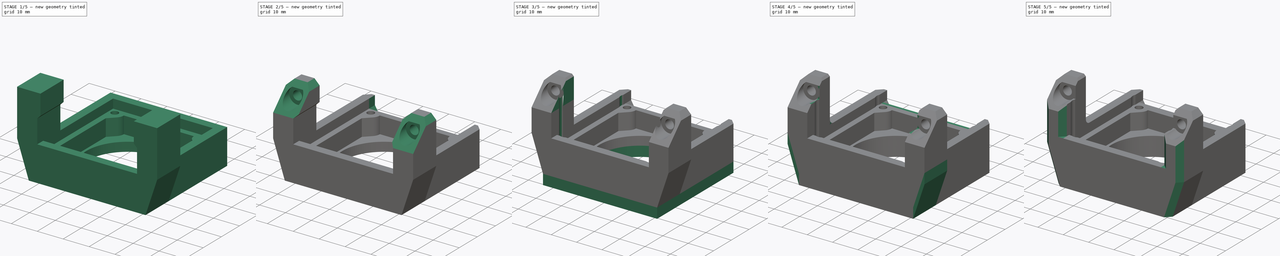
[diagram: build sequence overview — one tinted view per stage of 5, left to right]
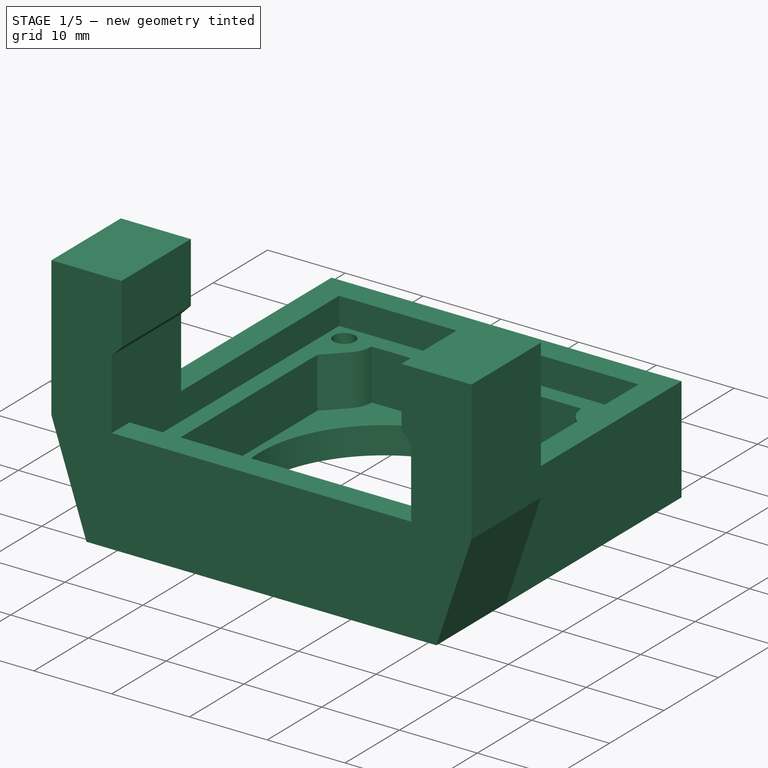
[diagram: stage 1 of 5 — iso view after this stage's code; geometry added in this stage tinted green]
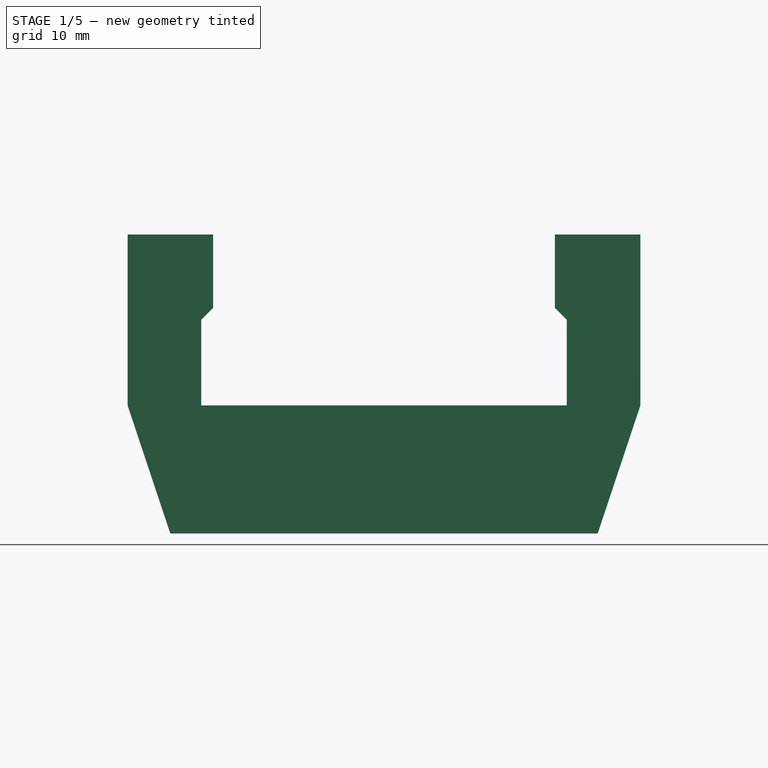
[diagram: stage 1 of 5 — front view after this stage's code; geometry added in this stage tinted green]
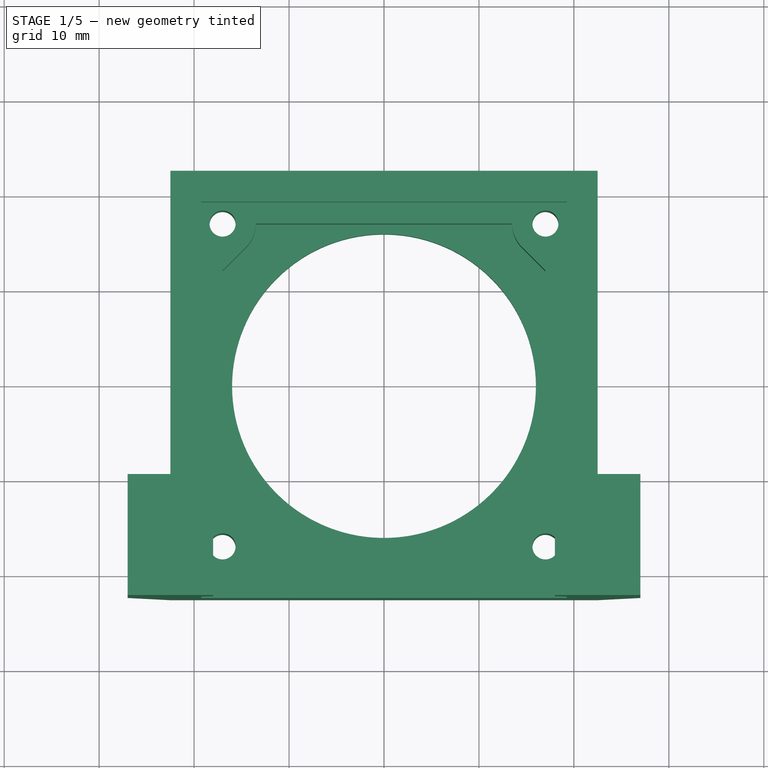
[diagram: stage 1 of 5 — top view after this stage's code; geometry added in this stage tinted green]
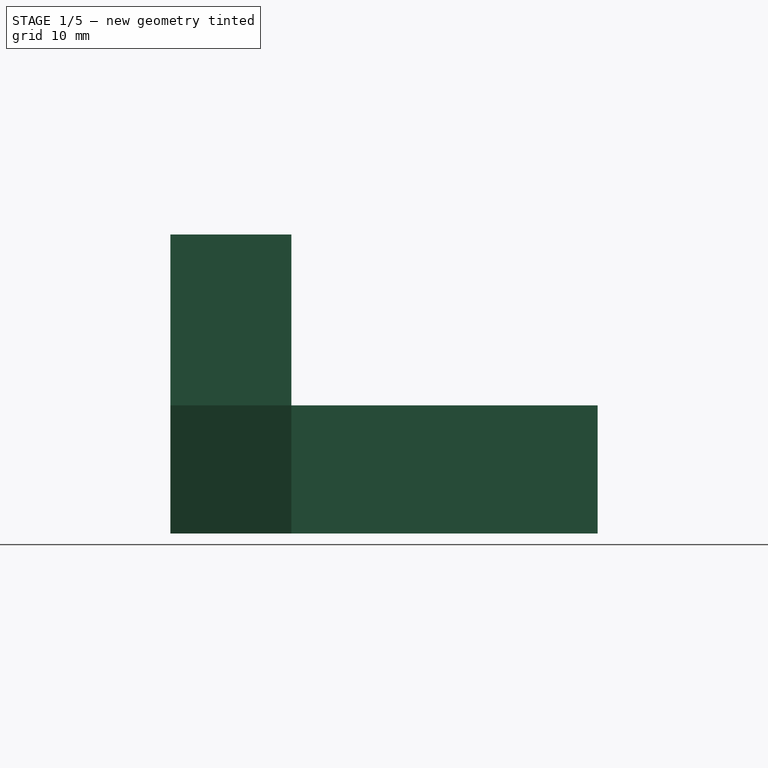
[diagram: stage 1 of 5 — right view after this stage's code; geometry added in this stage tinted green]
FCSTD DOCUMENT  (FreeCAD 0.20R29410 (Git))
Label: top-camera-mount
License: All rights reserved
LicenseURL: http://en.wikipedia.org/wiki/All_rights_reserved
objects: Sketcher::SketchObject×16, PartDesign::Pocket×10, PartDesign::Plane×7, PartDesign::Pad×5, PartDesign::Chamfer×4, PartDesign::Fillet×2, PartDesign::SubtractivePipe×1, PartDesign::Mirrored×1, PartDesign::Hole×1, PartDesign::Body×1
note: 71 computed .brp shape members not serialized (recipe doc carries the construction recipe); baked Part::Feature solids carry a one-line shape summary decoded from their .brp

FEATURE [Sketcher::SketchObject] Sketch  label="Base"
  FullyConstrained = true
  MapMode = 5
  Support = -> [XY_Plane]
  sketch-geometry (8):
    g0: LineSegment StartX=-22.5 StartY=22.5 StartZ=0 EndX=22.5 EndY=22.5 EndZ=0
    g1: LineSegment StartX=22.5 StartY=22.5 StartZ=0 EndX=22.5 EndY=-22.5 EndZ=0
    g2: LineSegment StartX=22.5 StartY=-22.5 StartZ=0 EndX=-22.5 EndY=-22.5 EndZ=0
    g3: LineSegment StartX=-22.5 StartY=-22.5 StartZ=0 EndX=-22.5 EndY=22.5 EndZ=0
    g4: LineSegment StartX=-19.25 StartY=19.25 StartZ=0 EndX=19.25 EndY=19.25 EndZ=0
    g5: LineSegment StartX=19.25 StartY=19.25 StartZ=0 EndX=19.25 EndY=-19.25 EndZ=0
    g6: LineSegment StartX=19.25 StartY=-19.25 StartZ=0 EndX=-19.25 EndY=-19.25 EndZ=0
    g7: LineSegment StartX=-19.25 StartY=-19.25 StartZ=0 EndX=-19.25 EndY=19.25 EndZ=0
  constraints (21):
    c: Coincident(g0,g1)
    c: Vertical(g1)
    c: Coincident(g1,g2)
    c: Horizontal(g2)
    c: Coincident(g2,g3)
    c: Coincident(g3,g0)
    c: Vertical(g3)
    c: Symmetric(g0,g0,g-2)
    c: DistanceX(g0,g0) = 45
    c: Coincident(g4,g5)
    c: Coincident(g5,g6)
    c: Coincident(g6,g7)
    c: Coincident(g7,g4)
    c: Horizontal(g6)
    c: Vertical(g7)
    c: DistanceX(g4,g4) = 38.5
    c: DistanceY(g5,g5) = 38.5
    c: Symmetric(g4,g5,g-1)
    c: Symmetric(g4,g4,g-2)
    c: DistanceY(g-1,g0) = 22.5
    c: DistanceY(g1,g-1) = 22.5
FEATURE [PartDesign::Pad] Pad
  AllowMultiFace = false
  Direction = (1,1,1)
  Length = 13.5
  Length2 = 100
  Profile = -> Sketch
  Reversed = true
  Type = 0
FEATURE [Sketcher::SketchObject] Sketch001  label="SquareCutout"
  FullyConstrained = true
  MapMode = 5
  Support = -> [XY_Plane]
  sketch-geometry (20):
    g0: LineSegment StartX=-19.25 StartY=19.25 StartZ=0 EndX=19.25 EndY=19.25 EndZ=0
    g1: LineSegment StartX=19.25 StartY=19.25 StartZ=0 EndX=19.25 EndY=-19.25 EndZ=0
    g2: LineSegment StartX=-19.25 StartY=-19.25 StartZ=0 EndX=-19.25 EndY=19.25 EndZ=0
    g3: LineSegment StartX=-19.25 StartY=-19.25 StartZ=0 EndX=19.25 EndY=19.25 EndZ=0
    g4: LineSegment StartX=-19.25 StartY=19.25 StartZ=0 EndX=19.25 EndY=-19.25 EndZ=0
    g5: LineSegment StartX=-19.25 StartY=-19.25 StartZ=0 EndX=19.25 EndY=-19.25 EndZ=0
    g6: LineSegment StartX=-17 StartY=17 StartZ=0 EndX=17 EndY=17 EndZ=0
    g7: LineSegment StartX=17 StartY=17 StartZ=0 EndX=17 EndY=-17 EndZ=0
    g8: LineSegment StartX=17 StartY=-17 StartZ=0 EndX=-17 EndY=-17 EndZ=0
    g9: LineSegment StartX=-17 StartY=-17 StartZ=0 EndX=-17 EndY=17 EndZ=0
    g10: ArcOfCircle CenterX=-17 CenterY=-17 CenterZ=0 NormalX=0 NormalY=0 NormalZ=1 AngleXU=0 Radius=3.5 StartAngle=3e-16 EndAngle=1.5708
    g11: ArcOfCircle CenterX=17 CenterY=-17 CenterZ=0 NormalX=0 NormalY=0 NormalZ=1 AngleXU=0 Radius=3.5 StartAngle=1.5708 EndAngle=3.14159
    g12: ArcOfCircle CenterX=17 CenterY=17 CenterZ=0 NormalX=0 NormalY=0 NormalZ=1 AngleXU=0 Radius=3.5 StartAngle=3.14159 EndAngle=3.92699
    g13: LineSegment StartX=14.5251 StartY=14.5251 StartZ=0 EndX=17 EndY=12.0503 EndZ=0
    g14: LineSegment StartX=17 StartY=12.0503 StartZ=0 EndX=17 EndY=-13.5 EndZ=0
    g15: LineSegment StartX=13.5 StartY=17 StartZ=0 EndX=-13.5 EndY=17 EndZ=0
    g16: ArcOfCircle CenterX=-17 CenterY=17 CenterZ=0 NormalX=0 NormalY=0 NormalZ=1 AngleXU=0 Radius=3.5 StartAngle=5.49779 EndAngle=6.28319
    g17: LineSegment StartX=-14.5251 StartY=14.5251 StartZ=0 EndX=-17 EndY=12.0503 EndZ=0
    g18: LineSegment StartX=-17 StartY=12.0503 StartZ=0 EndX=-17 EndY=-13.5 EndZ=0
    g19: LineSegment StartX=-13.5 StartY=-17 StartZ=0 EndX=13.5 EndY=-17 EndZ=0
  constraints (54):
    c: Coincident(g0,g1)
    c: Coincident(g2,g0)
    c: Vertical(g1)
    c: DistanceX(g0,g0) = 38.5
    c: DistanceY(g1,g1) = 38.5
    c: Symmetric(g0,g2,g-1)
    c: Symmetric(g0,g0,g-2)
    c: Coincident(g3,g0)
    c: Coincident(g4,g0)
    c: Coincident(g4,g1)
    c: Coincident(g6,g7)
    c: Coincident(g7,g8)
    c: Coincident(g8,g9)
    c: Coincident(g9,g6)
    c: Horizontal(g6)
    c: Horizontal(g8)
    c: Vertical(g7)
    c: Vertical(g9)
    c: PointOnObject(g6,g4)
    c: PointOnObject(g7,g4)
    c: DistanceX(g6,g6) = 34
    c: Coincident(g5,g2)
    c: Coincident(g5,g1)
    c: PointOnObject(g8,g3)
    c: Coincident(g3,g2)
    c: Horizontal(g5)
    c: Coincident(g10,g8)
    c: PointOnObject(g10,g9)
    c: PointOnObject(g10,g8)
    c: Coincident(g11,g7)
    c: PointOnObject(g11,g8)
    c: PointOnObject(g11,g7)
    c: Coincident(g12,g6)
    c: PointOnObject(g12,g6)
    c: PointOnObject(g12,g3)
    c: Tangent(g12,g13) = -1.5708
    c: Coincident(g13,g14)
    c: Coincident(g14,g11)
    c: Vertical(g14)
    c: Coincident(g12,g15)
    c: Coincident(g16,g6)
    c: PointOnObject(g16,g4)
    c: Coincident(g16,g15)
    c: Tangent(g16,g17) = 1.5708
    c: Coincident(g17,g18)
    c: Coincident(g18,g10)
    c: Vertical(g18)
    c: Diameter(g10) = 7
    c: Diameter(g11) = 7
    c: Diameter(g16) = 7
    c: Diameter(g12) = 7
    c: Horizontal(g15)
    c: Coincident(g19,g10)
    c: Coincident(g19,g11)
FEATURE [PartDesign::Pocket] Pocket  label="SquareCutOut"
  AllowMultiFace = false
  BaseFeature = -> Pad
  Direction = (1,1,1)
  Length = 10
  Length2 = 100
  Profile = -> Sketch001
  Type = 0
FEATURE [Sketcher::SketchObject] Sketch002
  FullyConstrained = true
  MapMode = 5
  Support = -> [XY_Plane]
  sketch-geometry (13):
    g0: Circle CenterX=0 CenterY=0 CenterZ=0 NormalX=0 NormalY=0 NormalZ=1 AngleXU=0 Radius=16
    g1: LineSegment StartX=-14 StartY=14 StartZ=0 EndX=14 EndY=14 EndZ=0
    g2: LineSegment StartX=14 StartY=14 StartZ=0 EndX=14 EndY=-14 EndZ=0
    g3: LineSegment StartX=14 StartY=-14 StartZ=0 EndX=-14 EndY=-14 EndZ=0
    g4: LineSegment StartX=-14 StartY=-14 StartZ=0 EndX=-14 EndY=14 EndZ=0
    g5: LineSegment StartX=-17 StartY=17 StartZ=0 EndX=17 EndY=17 EndZ=0
    g6: LineSegment StartX=17 StartY=17 StartZ=0 EndX=17 EndY=-17 EndZ=0
    g7: LineSegment StartX=17 StartY=-17 StartZ=0 EndX=-17 EndY=-17 EndZ=0
    g8: LineSegment StartX=-17 StartY=-17 StartZ=0 EndX=-17 EndY=17 EndZ=0
    g9: Circle CenterX=-17 CenterY=17 CenterZ=0 NormalX=0 NormalY=0 NormalZ=1 AngleXU=0 Radius=1.375
    g10: Circle CenterX=17 CenterY=17 CenterZ=0 NormalX=0 NormalY=0 NormalZ=1 AngleXU=0 Radius=1.375
    g11: Circle CenterX=17 CenterY=-17 CenterZ=0 NormalX=0 NormalY=0 NormalZ=1 AngleXU=0 Radius=1.375
    g12: Circle CenterX=-17 CenterY=-17 CenterZ=0 NormalX=0 NormalY=0 NormalZ=1 AngleXU=0 Radius=1.375
  constraints (30):
    c: Coincident(g0,g-1)
    c: Diameter(g0) = 32
    c: Coincident(g1,g2)
    c: Coincident(g2,g3)
    c: Coincident(g3,g4)
    c: Coincident(g4,g1)
    c: Horizontal(g3)
    c: Vertical(g2)
    c: Symmetric(g1,g1,g-2)
    c: Symmetric(g1,g3,g-1)
    c: DistanceX(g1,g1) = 28
    c: DistanceY(g2,g2) = 28
    c: Coincident(g5,g6)
    c: Coincident(g6,g7)
    c: Coincident(g7,g8)
    c: Coincident(g8,g5)
    c: Horizontal(g7)
    c: Vertical(g6)
    c: DistanceX(g5,g5) = 34
    c: Equal(g5,g8)
    c: Symmetric(g5,g5,g-2)
    c: Symmetric(g5,g7,g-1)
    c: Coincident(g9,g5)
    c: Coincident(g10,g5)
    c: Coincident(g11,g6)
    c: Coincident(g12,g7)
    c: Diameter(g9) = 2.75
    c: Diameter(g10) = 2.75
    c: Diameter(g11) = 2.75
    c: Diameter(g12) = 2.75
FEATURE [PartDesign::Pocket] Pocket001  label="ScrewHoles"
  AllowMultiFace = false
  BaseFeature = -> Pocket
  Direction = (1,1,1)
  Length = 5
  Length2 = 100
  Profile = -> Sketch002
  Type = 1
FEATURE [PartDesign::Plane] DatumPlane
  AttachmentOffset = pos=(0,0,-7.75) rot=(0,0,1;0rad)
  Length = 64.3923
  MapMode = 5
  Placement = pos=(0,-14.75,-1.7e-15) rot=(1,0,0;1.5708rad)
  ResizeMode = 0
  Support = -> [Pocket001]
  Width = 60.3923
FEATURE [Sketcher::SketchObject] Sketch003  label="VerticalArms"
  FullyConstrained = true
  MapMode = 5
  Placement = pos=(0,-14.75,-1.7e-15) rot=(1,0,0;1.5708rad)
  Support = -> [DatumPlane]
  sketch-geometry (14):
    g0: LineSegment StartX=-22.5 StartY=-13.5 StartZ=0 EndX=-27 EndY=0 EndZ=0
    g1: LineSegment StartX=-27 StartY=0 StartZ=0 EndX=-27 EndY=18 EndZ=0
    g2: LineSegment StartX=-27 StartY=18 StartZ=0 EndX=-18 EndY=18 EndZ=0
    g3: LineSegment StartX=18 StartY=18 StartZ=0 EndX=27 EndY=18 EndZ=0
    g4: LineSegment StartX=27 StartY=18 StartZ=0 EndX=27 EndY=0 EndZ=0
    g5: LineSegment StartX=27 StartY=0 StartZ=0 EndX=22.5 EndY=-13.5 EndZ=0
    g6: LineSegment StartX=-22.5 StartY=-13.5 StartZ=0 EndX=-19.25 EndY=0 EndZ=0
    g7: LineSegment StartX=19.25 StartY=0 StartZ=0 EndX=22.5 EndY=-13.5 EndZ=0
    g8: LineSegment StartX=-18 StartY=18 StartZ=0 EndX=-18 EndY=10.25 EndZ=0
    g9: LineSegment StartX=-18 StartY=10.25 StartZ=0 EndX=-19.25 EndY=9 EndZ=0
    g10: LineSegment StartX=-19.25 StartY=9 StartZ=0 EndX=-19.25 EndY=0 EndZ=0
    g11: LineSegment StartX=18 StartY=18 StartZ=0 EndX=18 EndY=10.25 EndZ=0
    g12: LineSegment StartX=18 StartY=10.25 StartZ=0 EndX=19.25 EndY=9 EndZ=0
    g13: LineSegment StartX=19.25 StartY=9 StartZ=0 EndX=19.25 EndY=0 EndZ=0
  constraints (39):
    c: PointOnObject(g0,g-1)
    c: Coincident(g0,g1)
    c: Coincident(g1,g2)
    c: PointOnObject(g6,g-1)
    c: Horizontal(g3)
    c: Coincident(g3,g4)
    c: PointOnObject(g4,g-1)
    c: Vertical(g4)
    c: Coincident(g4,g5)
    c: Vertical(g1)
    c: Horizontal(g2)
    c: Symmetric(g6,g7,g-2)
    c: DistanceX(g6,g7) = 38.5
    c: DistanceX(g0,g5) = 45
    c: Symmetric(g0,g5,g-2)
    c: DistanceY(g0,g-1) = 13.5
    c: Symmetric(g1,g3,g-2)
    c: DistanceY(g-1,g2) = 18
    c: Coincident(g6,g0)
    c: Coincident(g7,g5)
    c: Vertical(g8)
    c: Coincident(g8,g9)
    c: Angle(g8,g9) = 2.35619
    c: Coincident(g10,g9)
    c: Coincident(g10,g6)
    c: Vertical(g10)
    c: DistanceX(g0,g-1) = 27
    c: Coincident(g8,g2)
    c: DistanceX(g2,g2) = 9
    c: DistanceY(g9,g2) = 9
    c: DistanceX(g3,g3) = 9
    c: Coincident(g3,g11)
    c: Vertical(g11)
    c: Coincident(g11,g12)
    c: Coincident(g12,g13)
    c: Coincident(g13,g7)
    c: Vertical(g13)
    c: DistanceY(g12,g3) = 9
    c: Angle(g12,g11) = 2.35619
FEATURE [PartDesign::Plane] DatumPlane003  label="PrintPlane"
  Length = 64.3923
  MapMode = 5
  Placement = pos=(0,0,-13.5) rot=(1,0,0;3.14159rad)
  ResizeMode = 0
  Width = 60.3923
FEATURE [Sketcher::SketchObject] Sketch007  label="CutOutForCameraPCB"
  FullyConstrained = true
  MapMode = 5
  Support = -> [XY_Plane]
  sketch-geometry (4):
    g0: LineSegment StartX=-19.25 StartY=19.25 StartZ=0 EndX=19.25 EndY=19.25 EndZ=0
    g1: LineSegment StartX=19.25 StartY=19.25 StartZ=0 EndX=19.25 EndY=-19.25 EndZ=0
    g2: LineSegment StartX=19.25 StartY=-19.25 StartZ=0 EndX=-19.25 EndY=-19.25 EndZ=0
    g3: LineSegment StartX=-19.25 StartY=-19.25 StartZ=0 EndX=-19.25 EndY=19.25 EndZ=0
  constraints (11):
    c: Coincident(g0,g1)
    c: Coincident(g1,g2)
    c: Coincident(g2,g3)
    c: Coincident(g3,g0)
    c: Horizontal(g0)
    c: Horizontal(g2)
    c: Vertical(g1)
    c: Vertical(g3)
    c: Symmetric(g0,g1,g-1)
    c: Equal(g1,g0)
    c: DistanceX(g0,g0) = 38.5
FEATURE [PartDesign::Pocket] Pocket005  label="PCB"
  BaseFeature = -> Pocket001
  Direction = (1,1,1)
  Length = 3.5
  Length2 = 100
  Profile = -> Sketch007
  Type = 0
FEATURE [PartDesign::Pad] Pad001
  AllowMultiFace = false
  BaseFeature = -> Pocket005
  Direction = (1,1,1)
  Length = 7.75
  Length2 = 5
  Profile = -> Sketch003
  Reversed = true
  Type = 4
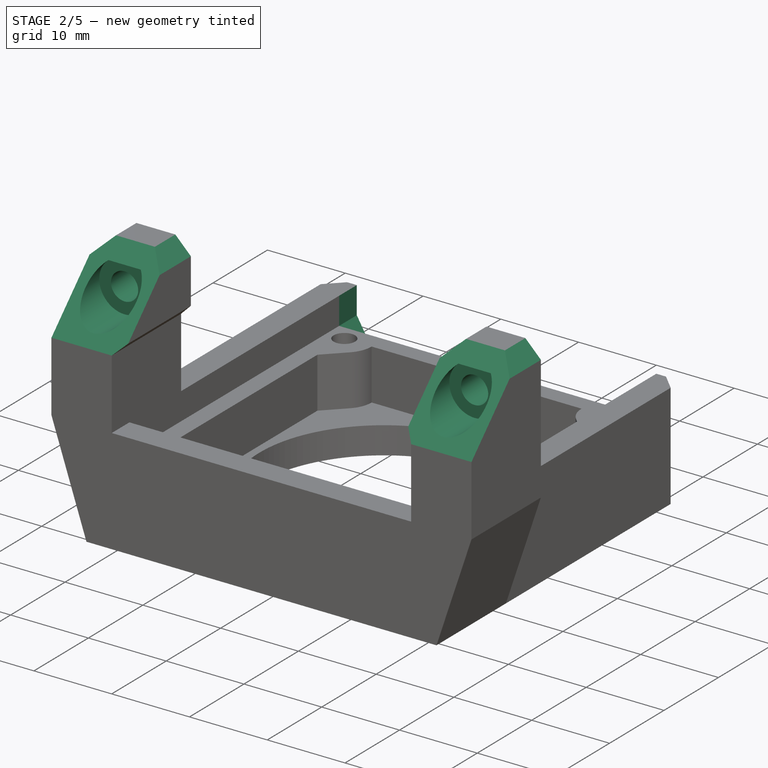
[diagram: stage 2 of 5 — iso view after this stage's code; geometry added in this stage tinted green]
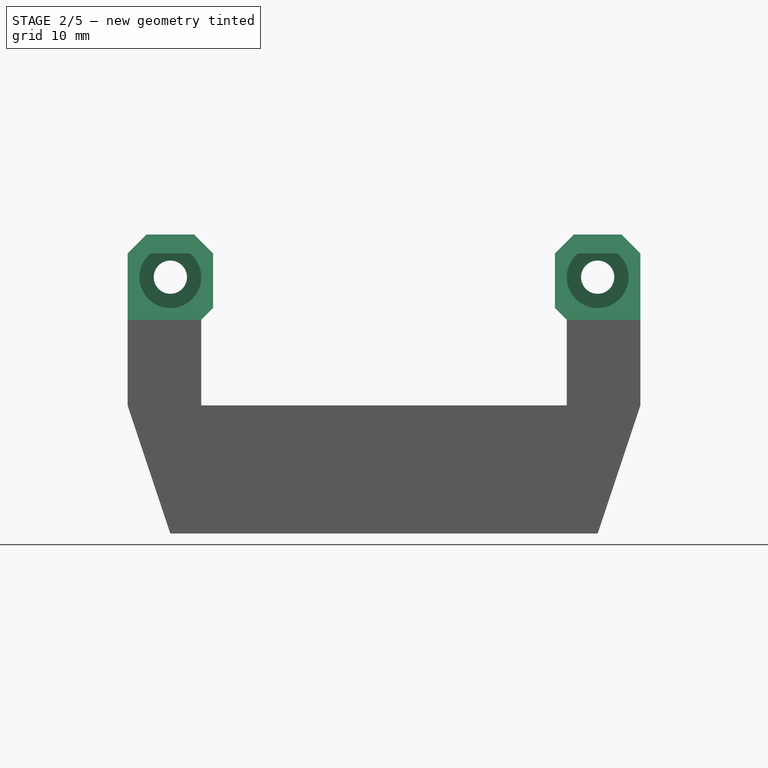
[diagram: stage 2 of 5 — front view after this stage's code; geometry added in this stage tinted green]
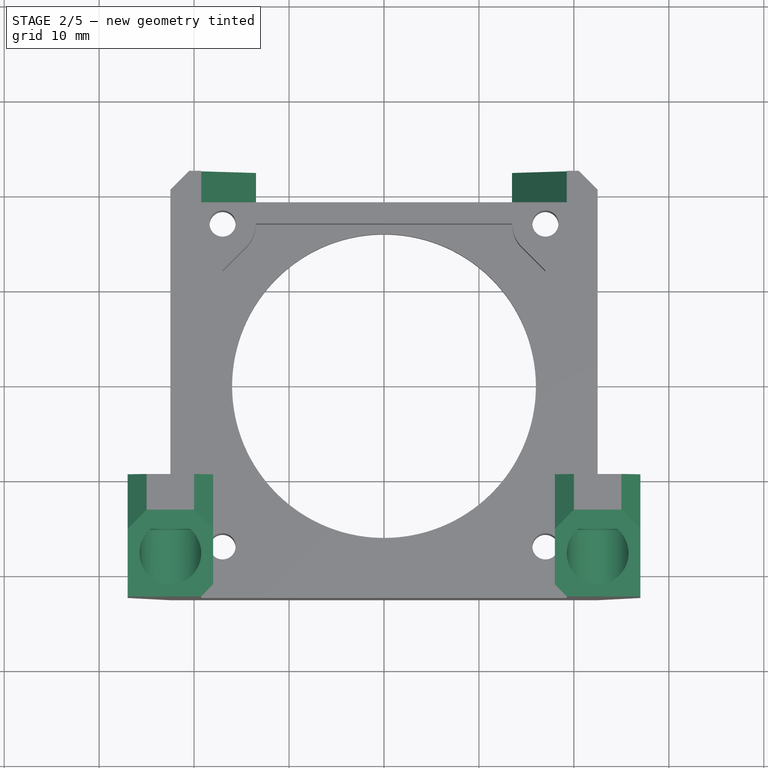
[diagram: stage 2 of 5 — top view after this stage's code; geometry added in this stage tinted green]
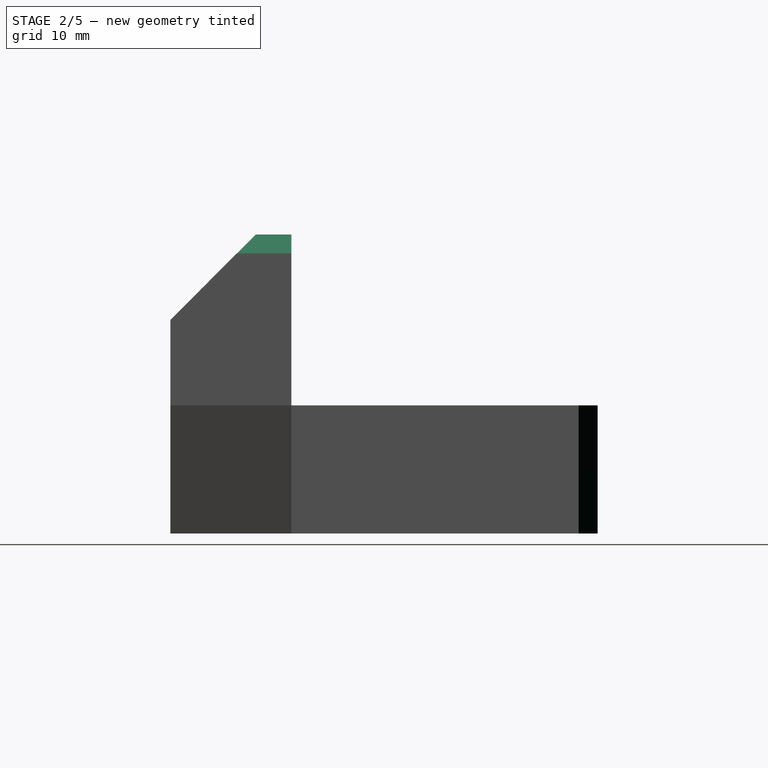
[diagram: stage 2 of 5 — right view after this stage's code; geometry added in this stage tinted green]
FEATURE [PartDesign::Plane] DatumPlane001
  Length = 64.3923
  MapMode = 5
  Placement = pos=(0,22.5,0) rot=(0,0.707107,0.707107;3.14159rad)
  ResizeMode = 0
  Support = -> [Pad001]
  Width = 60.3923
FEATURE [Sketcher::SketchObject] Sketch005
  FullyConstrained = true
  MapMode = 5
  Placement = pos=(0,22.5,0) rot=(0,0.707107,0.707107;3.14159rad)
  Support = -> [DatumPlane001]
  sketch-geometry (8):
    g0: LineSegment StartX=-9.625 StartY=-20.171 StartZ=0 EndX=9.625 EndY=-20.171 EndZ=0
    g1: LineSegment StartX=9.625 StartY=-20.171 StartZ=0 EndX=19.25 EndY=-3.5 EndZ=0
    g2: LineSegment StartX=-19.25 StartY=-3.5 StartZ=0 EndX=-9.625 EndY=-20.171 EndZ=0
    g3: Circle CenterX=0 CenterY=-3.5 CenterZ=0 NormalX=0 NormalY=0 NormalZ=1 AngleXU=0 Radius=19.25
    g4: LineSegment StartX=-19.25 StartY=-3.5 StartZ=0 EndX=-19.25 EndY=10 EndZ=0
    g5: LineSegment StartX=19.25 StartY=-3.5 StartZ=0 EndX=19.25 EndY=10 EndZ=0
    g6: LineSegment StartX=-19.25 StartY=10 StartZ=0 EndX=19.25 EndY=10 EndZ=0
    g7: LineSegment StartX=-19.25 StartY=-3.5 StartZ=0 EndX=19.25 EndY=-3.5 EndZ=0
  constraints (23):
    c: Coincident(g0,g1)
    c: Coincident(g2,g0)
    c: Equal(g0,g1)
    c: Equal(g0,g2)
    c: PointOnObject(g0,g3)
    c: PointOnObject(g1,g3)
    c: PointOnObject(g2,g3)
    c: PointOnObject(g2,g3)
    c: Diameter(g3) = 38.5
    c: DistanceY(g3,g-1) = 3.5
    c: PointOnObject(g3,g-2)
    c: Vertical(g4)
    c: Coincident(g5,g1)
    c: Vertical(g5)
    c: Coincident(g6,g4)
    c: Coincident(g6,g5)
    c: Horizontal(g6)
    c: DistanceY(g-1,g5) = 10
    c: Coincident(g2,g4)
    c: Coincident(g7,g2)
    c: Coincident(g7,g1)
    c: PointOnObject(g3,g7)
    c: Horizontal(g7)
FEATURE [PartDesign::Pocket] Pocket003
  AllowMultiFace = false
  BaseFeature = -> Pad001
  Direction = (1,1,1)
  Length = 3.25
  Length2 = 100
  Profile = -> Sketch005
  Type = 0
FEATURE [PartDesign::Plane] DatumPlane004  label="PartNumberPlane"
  Length = 64.3923
  MapMode = 5
  Placement = pos=(0,-22.5,0) rot=(1,0,0;1.5708rad)
  ResizeMode = 0
  Support = -> [Pocket003]
  Width = 60.3923
FEATURE [PartDesign::Chamfer] Chamfer
  Angle = 45
  Base = -> Pocket003 [Edge72,Edge104]
  BaseFeature = -> Pocket003
  ChamferType = 0
  FlipDirection = false
  Size = 9
  Size2 = 1
  SupportTransform = false
  UseAllEdges = false
FEATURE [Sketcher::SketchObject] Sketch008  label="M3Holes"
  FullyConstrained = true
  MapMode = 5
  Placement = pos=(0,-22.5,0) rot=(1,0,0;1.5708rad)
  Support = -> [DatumPlane004]
  sketch-geometry (3):
    g0: Circle CenterX=-22.5 CenterY=13.5 CenterZ=0 NormalX=0 NormalY=0 NormalZ=1 AngleXU=0 Radius=1.75
    g1: Circle CenterX=22.5 CenterY=13.5 CenterZ=0 NormalX=0 NormalY=0 NormalZ=1 AngleXU=0 Radius=1.75
    g2: LineSegment StartX=-22.5 StartY=13.5 StartZ=0 EndX=22.5 EndY=13.5 EndZ=0
  constraints (7):
    c: DistanceX(g0,g1) = 45
    c: DistanceY(g-1,g0) = 13.5
    c: Diameter(g0) = 3.5
    c: Diameter(g1) = 3.5
    c: Coincident(g2,g0)
    c: Coincident(g2,g1)
    c: Symmetric(g0,g1,g-2)
FEATURE [PartDesign::Pocket] Pocket008
  BaseFeature = -> Chamfer
  Direction = (1,1,1)
  Length = 13
  Length2 = 100
  Profile = -> Sketch008
  Type = 0
FEATURE [Sketcher::SketchObject] Sketch009
  FullyConstrained = true
  MapMode = 5
  Placement = pos=(0,-22.5,0) rot=(1,0,0;1.5708rad)
  Support = -> [DatumPlane004]
  sketch-geometry (3):
    g0: Circle CenterX=-22.5 CenterY=13.5 CenterZ=0 NormalX=0 NormalY=0 NormalZ=1 AngleXU=0 Radius=3.25
    g1: Circle CenterX=22.5 CenterY=13.5 CenterZ=0 NormalX=0 NormalY=0 NormalZ=1 AngleXU=0 Radius=3.25
    g2: LineSegment StartX=-22.5 StartY=13.5 StartZ=0 EndX=22.5 EndY=13.5 EndZ=0
  constraints (7):
    c: Coincident(g2,g0)
    c: Coincident(g2,g1)
    c: DistanceX(g2,g2) = 45
    c: DistanceY(g-1,g0) = 13.5
    c: Symmetric(g0,g1,g-2)
    c: Diameter(g0) = 6.5
    c: Diameter(g1) = 6.5
FEATURE [PartDesign::Pocket] Pocket009
  BaseFeature = -> Pocket008
  Direction = (1,1,1)
  Length = 7
  Length2 = 100
  Profile = -> Sketch009
  Type = 0
FEATURE [PartDesign::Chamfer] Chamfer001
  Angle = 45
  Base = -> Pocket009 [Edge5,Edge24,Edge140,Edge143,Edge94,Edge35]
  BaseFeature = -> Pocket009
  ChamferType = 0
  FlipDirection = false
  Size = 2
  Size2 = 1
  SupportTransform = false
  UseAllEdges = false
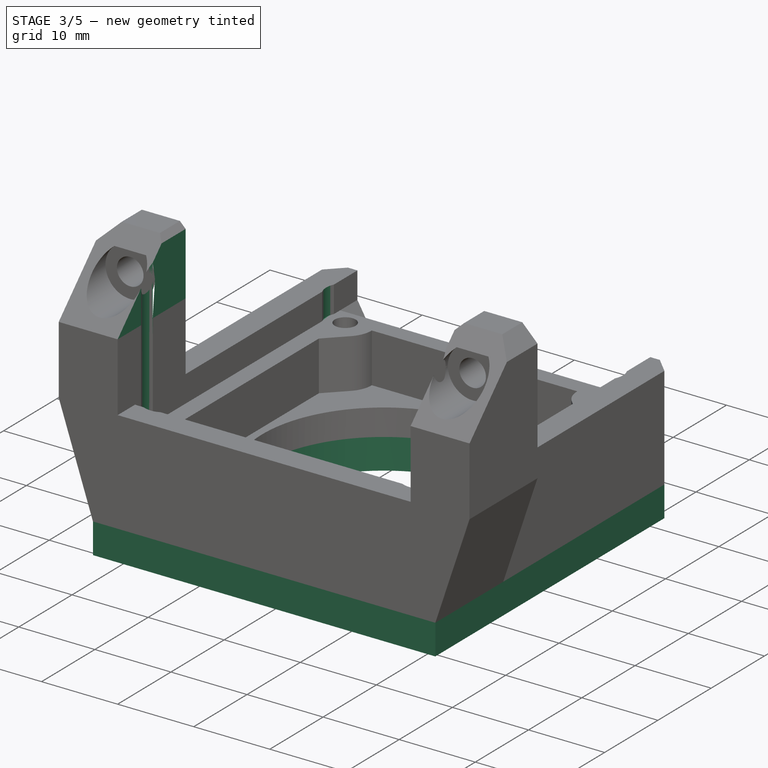
[diagram: stage 3 of 5 — iso view after this stage's code; geometry added in this stage tinted green]
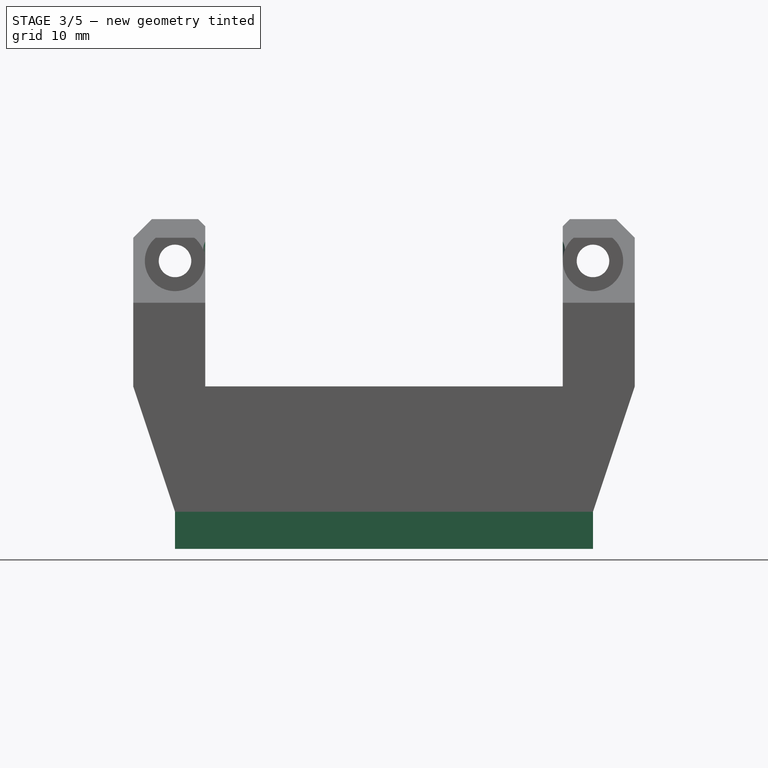
[diagram: stage 3 of 5 — front view after this stage's code; geometry added in this stage tinted green]
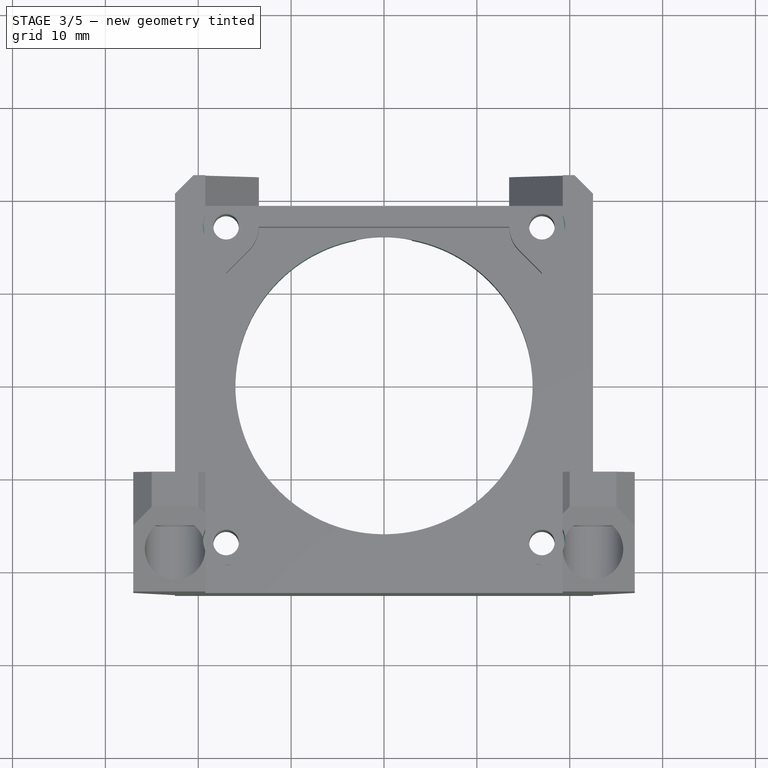
[diagram: stage 3 of 5 — top view after this stage's code; geometry added in this stage tinted green]
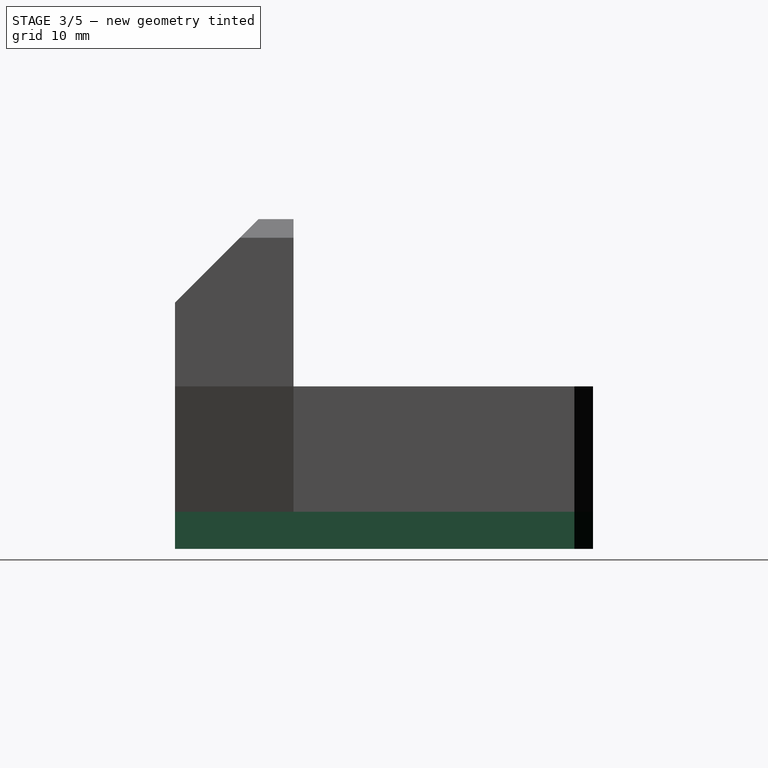
[diagram: stage 3 of 5 — right view after this stage's code; geometry added in this stage tinted green]
FEATURE [Sketcher::SketchObject] Sketch010
  FullyConstrained = true
  MapMode = 5
  Support = -> [XY_Plane]
  sketch-geometry (8):
    g0: LineSegment StartX=-17 StartY=17 StartZ=0 EndX=17 EndY=17 EndZ=0
    g1: LineSegment StartX=17 StartY=17 StartZ=0 EndX=17 EndY=-17 EndZ=0
    g2: LineSegment StartX=17 StartY=-17 StartZ=0 EndX=-17 EndY=-17 EndZ=0
    g3: LineSegment StartX=-17 StartY=-17 StartZ=0 EndX=-17 EndY=17 EndZ=0
    g4: Circle CenterX=-17 CenterY=17 CenterZ=0 NormalX=0 NormalY=0 NormalZ=1 AngleXU=0 Radius=2.5
    g5: Circle CenterX=17 CenterY=17 CenterZ=0 NormalX=0 NormalY=0 NormalZ=1 AngleXU=0 Radius=2.5
    g6: Circle CenterX=17 CenterY=-17 CenterZ=0 NormalX=0 NormalY=0 NormalZ=1 AngleXU=0 Radius=2.5
    g7: Circle CenterX=-17 CenterY=-17 CenterZ=0 NormalX=0 NormalY=0 NormalZ=1 AngleXU=0 Radius=2.5
  constraints (18):
    c: Coincident(g0,g1)
    c: Coincident(g1,g2)
    c: Coincident(g2,g3)
    c: Coincident(g3,g0)
    c: Horizontal(g2)
    c: Vertical(g1)
    c: Symmetric(g0,g0,g-2)
    c: Symmetric(g0,g2,g-1)
    c: DistanceY(g1,g1) = 34
    c: DistanceX(g0,g0) = 34
    c: Coincident(g4,g0)
    c: Coincident(g5,g0)
    c: Coincident(g6,g1)
    c: Diameter(g5) = 5
    c: Diameter(g4) = 5
    c: Diameter(g6) = 5
    c: Coincident(g7,g2)
    c: Diameter(g7) = 5
FEATURE [PartDesign::Pocket] Pocket010
  BaseFeature = -> Chamfer001
  Direction = (0,0,-1)
  Length = 3.5
  Length2 = 23
  Profile = -> Sketch010
  Type = 4
FEATURE [Sketcher::SketchObject] Sketch011
  FullyConstrained = true
  MapMode = 5
  Support = -> [XY_Plane]
  sketch-geometry (6):
    g0: LineSegment StartX=-17 StartY=0 StartZ=0 EndX=17 EndY=0 EndZ=0
    g1: LineSegment StartX=17 StartY=0 StartZ=0 EndX=17 EndY=-17 EndZ=0
    g2: LineSegment StartX=17 StartY=-17 StartZ=0 EndX=-17 EndY=-17 EndZ=0
    g3: LineSegment StartX=-17 StartY=-17 StartZ=0 EndX=-17 EndY=0 EndZ=0
    g4: Circle CenterX=-17 CenterY=-17 CenterZ=0 NormalX=0 NormalY=0 NormalZ=1 AngleXU=0 Radius=2.5
    g5: Circle CenterX=17 CenterY=-17 CenterZ=0 NormalX=0 NormalY=0 NormalZ=1 AngleXU=0 Radius=2.5
  constraints (15):
    c: Coincident(g0,g1)
    c: Coincident(g1,g2)
    c: Coincident(g2,g3)
    c: Coincident(g3,g0)
    c: Horizontal(g2)
    c: Vertical(g1)
    c: Vertical(g3)
    c: PointOnObject(g0,g-1)
    c: Symmetric(g0,g0,g-2)
    c: DistanceX(g2,g2) = 34
    c: DistanceY(g1,g1) = 17
    c: Coincident(g4,g2)
    c: Coincident(g5,g1)
    c: Equal(g4,g5)
    c: Diameter(g4) = 5
FEATURE [PartDesign::Plane] DatumPlane005
  Length = 64.3923
  MapMode = 5
  Placement = pos=(0,19.25,-4.6e-15) rot=(0,0.707107,0.707107;3.14159rad)
  ResizeMode = 0
  Support = -> [Chamfer001]
  Width = 60.3923
FEATURE [Sketcher::SketchObject] Sketch012  label="focus bolt access pocket sketch"
  FullyConstrained = true
  MapMode = 5
  Placement = pos=(0,19.25,-4.6e-15) rot=(0,0.707107,0.707107;3.14159rad)
  Support = -> [DatumPlane005]
  sketch-geometry (4):
    g0: ArcOfCircle CenterX=0 CenterY=-14.5 CenterZ=0 NormalX=0 NormalY=0 NormalZ=1 AngleXU=0 Radius=3 StartAngle=-1.874e-13 EndAngle=3.14159
    g1: ArcOfCircle CenterX=1e-16 CenterY=-17.5 CenterZ=0 NormalX=0 NormalY=0 NormalZ=1 AngleXU=0 Radius=3 StartAngle=3.14159 EndAngle=6.28319
    g2: LineSegment StartX=-3 StartY=-14.5 StartZ=0 EndX=-3 EndY=-17.5 EndZ=0
    g3: LineSegment StartX=3 StartY=-14.5 StartZ=0 EndX=3 EndY=-17.5 EndZ=0
  constraints (10):
    c: Tangent(g0,g3) = 1.5708
    c: Tangent(g0,g2) = -1.5708
    c: Tangent(g2,g1) = -1.5708
    c: Tangent(g3,g1) = 1.5708
    c: Vertical(g2)
    c: Equal(g0,g1)
    c: PointOnObject(g0,g-2)
    c: Diameter(g0) = 6
    c: DistanceY(g1,g0) = 3
    c: DistanceY(g0,g-1) = 14.5
FEATURE [PartDesign::Pad] Pad002
  BaseFeature = -> Pocket010
  Direction = (0,0,-1)
  Length = 4
  Length2 = 10
  Profile = -> Pocket010 [Face25]
  Type = 0
FEATURE [PartDesign::Pocket] Pocket012
  BaseFeature = -> Pad002
  Direction = (0,-1,2e-16)
  Length = 5
  Length2 = 5
  Profile = -> Sketch012
  ReferenceAxis = -> Sketch012 [N_Axis]
  Type = 0
FEATURE [Sketcher::SketchObject] Sketch013
  FullyConstrained = false
  MapMode = 5
  Placement = pos=(-19.25,0,0) rot=(0.57735,0.57735,0.57735;2.0944rad)
  Support = -> [Pocket012]
  sketch-geometry (4):
    g0: LineSegment StartX=-2.04172 StartY=6.57031 StartZ=0 EndX=-27.8765 EndY=6.57031 EndZ=0
    g1: LineSegment StartX=-27.8765 StartY=6.57031 StartZ=0 EndX=-27.8765 EndY=24.0815 EndZ=0
    g2: LineSegment StartX=-27.8765 StartY=24.0815 StartZ=0 EndX=-2.04172 EndY=24.0815 EndZ=0
    g3: LineSegment StartX=-2.04172 StartY=24.0815 StartZ=0 EndX=-2.04172 EndY=6.57031 EndZ=0
  constraints (8):
    c: Coincident(g0,g1)
    c: Coincident(g1,g2)
    c: Coincident(g2,g3)
    c: Coincident(g3,g0)
    c: Horizontal(g0)
    c: Horizontal(g2)
    c: Vertical(g1)
    c: Vertical(g3)
FEATURE [PartDesign::Pocket] Pocket013
  BaseFeature = -> Pocket012
  Direction = (-1,0,0)
  Length = 0
  Length2 = 5
  Profile = -> Sketch013
  ReferenceAxis = -> Sketch013 [N_Axis]
  Reversed = true
  Type = 3
  UpToFace = -> Pocket012 [Face90]
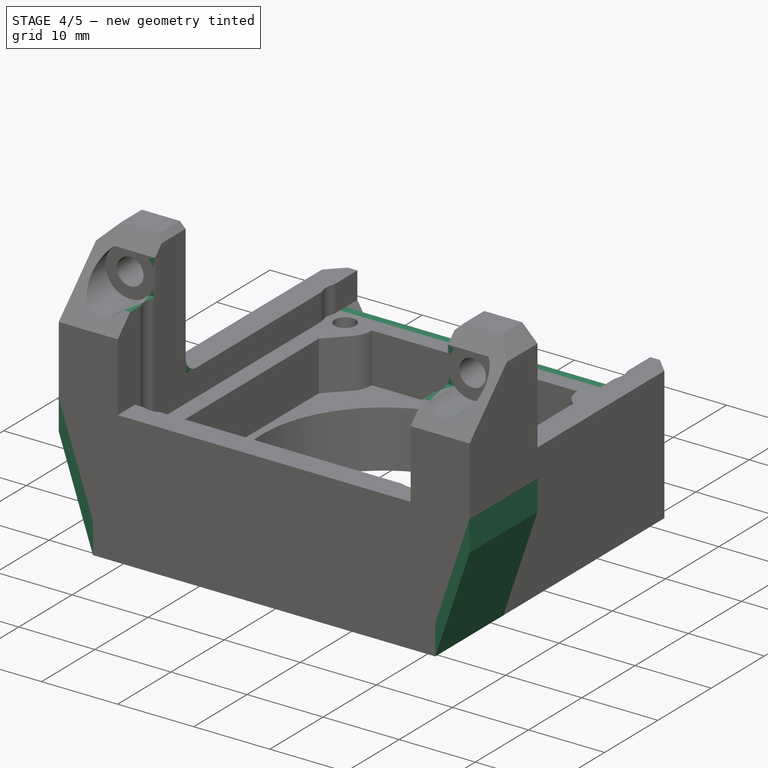
[diagram: stage 4 of 5 — iso view after this stage's code; geometry added in this stage tinted green]
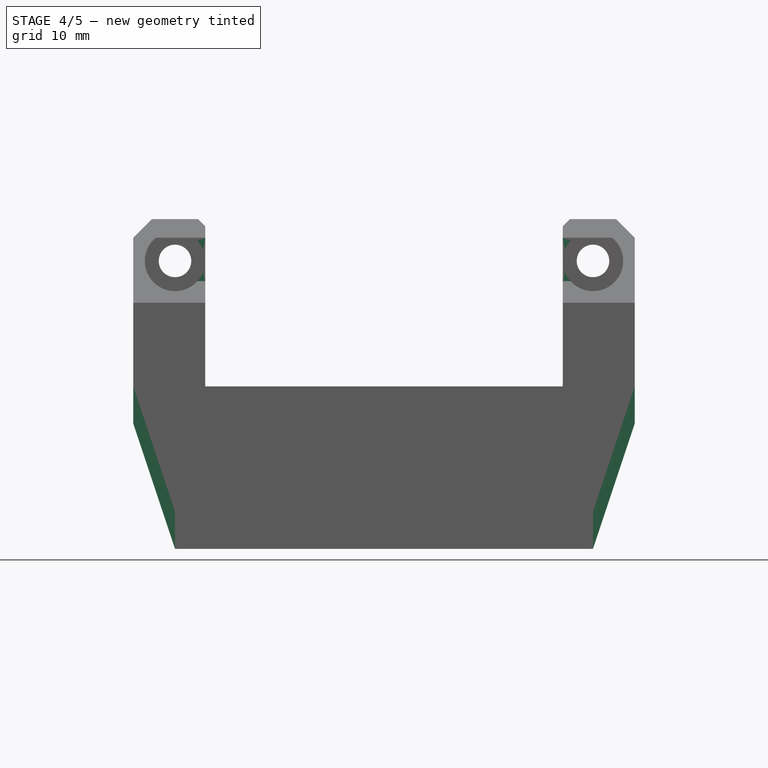
[diagram: stage 4 of 5 — front view after this stage's code; geometry added in this stage tinted green]
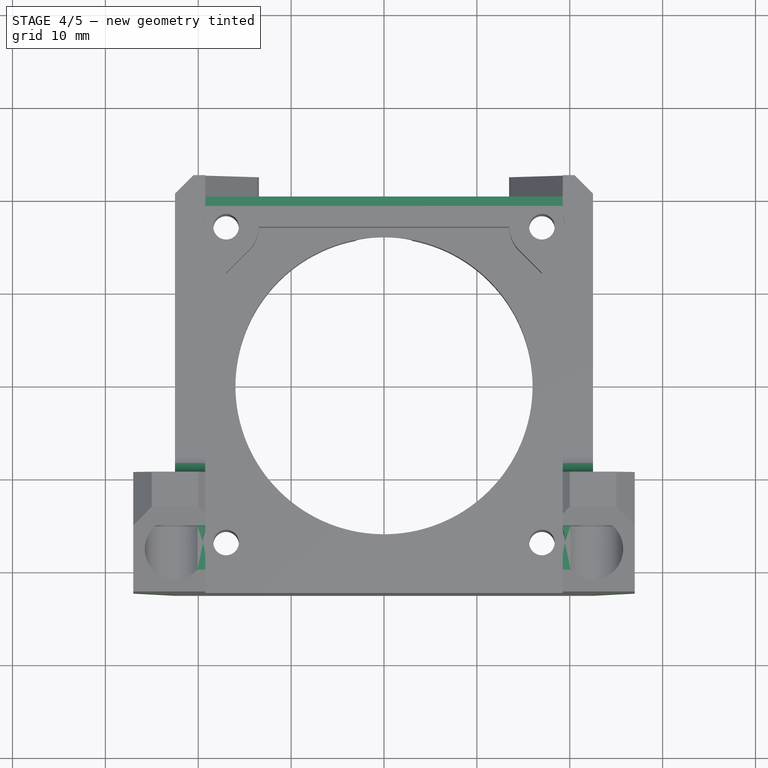
[diagram: stage 4 of 5 — top view after this stage's code; geometry added in this stage tinted green]
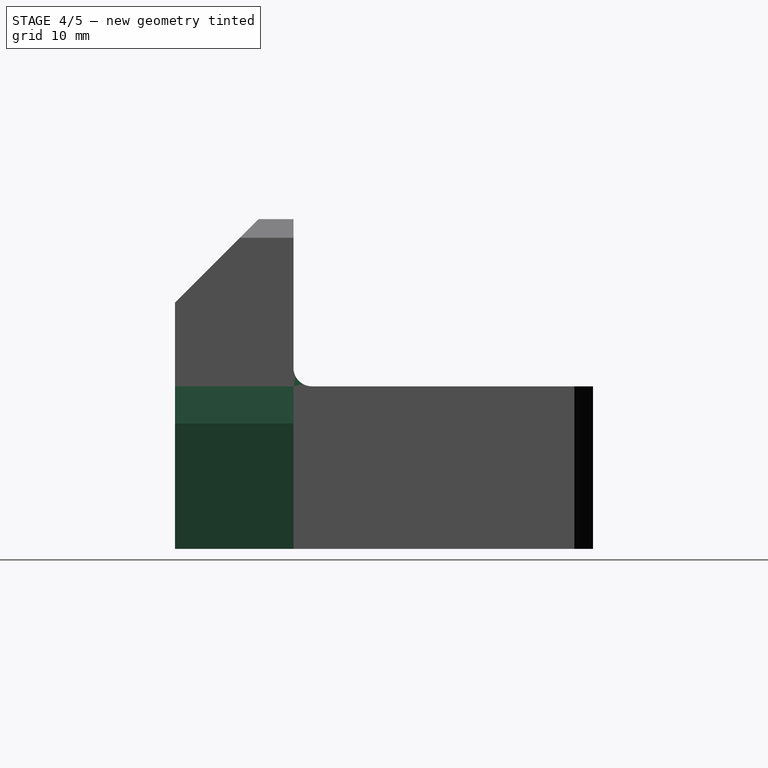
[diagram: stage 4 of 5 — right view after this stage's code; geometry added in this stage tinted green]
FEATURE [Sketcher::SketchObject] Sketch014
  FullyConstrained = false
  MapMode = 5
  Placement = pos=(0,-15.5,0) rot=(1,0,0;1.5708rad)
  Support = -> [Pocket013]
  sketch-geometry (4):
    g0: LineSegment StartX=-21.5041 StartY=16.778 StartZ=0 EndX=21.8587 EndY=16.778 EndZ=0
    g1: LineSegment StartX=21.8587 StartY=16.778 StartZ=0 EndX=21.8587 EndY=11.3306 EndZ=0
    g2: LineSegment StartX=21.8587 StartY=11.3306 StartZ=0 EndX=-21.5041 EndY=11.3306 EndZ=0
    g3: LineSegment StartX=-21.5041 StartY=11.3306 StartZ=0 EndX=-21.5041 EndY=16.778 EndZ=0
  constraints (8):
    c: Coincident(g0,g1)
    c: Coincident(g1,g2)
    c: Coincident(g2,g3)
    c: Coincident(g3,g0)
    c: Horizontal(g0)
    c: Horizontal(g2)
    c: Vertical(g1)
    c: Vertical(g3)
FEATURE [PartDesign::Pocket] Pocket014
  BaseFeature = -> Pocket013
  Direction = (0,1,-2e-16)
  Length = 5
  Length2 = 5
  Profile = -> Sketch014
  ReferenceAxis = -> Sketch014 [N_Axis]
  Reversed = true
  Type = 0
FEATURE [PartDesign::Fillet] Fillet
  Base = -> Pocket014 [Edge71,Edge47,Edge70,Edge28,Edge49,Edge69,Edge72,Edge73,Edge274,Edge275,Edge286,Edge287,Edge235,Edge281,Edge271,Edge203]
  BaseFeature = -> Pocket014
  Radius = 2
  SupportTransform = false
  UseAllEdges = false
FEATURE [PartDesign::Fillet] Fillet001
  Base = -> Fillet [Edge322,Edge200,Edge106,Edge86,Edge291,Edge18,Edge240,Edge170]
  BaseFeature = -> Fillet
  Radius = 2
  SupportTransform = false
  UseAllEdges = false
FEATURE [PartDesign::Pad] Pad003
  BaseFeature = -> Fillet001
  Direction = (0,1,-2e-16)
  Length = 1
  Length2 = 10
  Profile = -> Fillet001 [Face50,Face80,Face85]
  Type = 0
FEATURE [PartDesign::Plane] DatumPlane006
  Length = 64.3923
  MapMode = 5
  Placement = pos=(0,-22.5,0) rot=(1,0,0;1.5708rad)
  ResizeMode = 0
  Support = -> [Pad003]
  Width = 60.3923
FEATURE [Sketcher::SketchObject] Sketch015
  ExternalGeometry = -> [Pad003]
  FullyConstrained = true
  MapMode = 5
  Placement = pos=(0,-22.5,0) rot=(1,0,0;1.5708rad)
  Support = -> [DatumPlane006]
  sketch-geometry (8):
    g0: LineSegment StartX=-22.5 StartY=-17.5 StartZ=0 EndX=-27 EndY=-4 EndZ=0
    g1: LineSegment StartX=22.5 StartY=-17.5 StartZ=0 EndX=27 EndY=-4 EndZ=0
    g2: LineSegment StartX=27 StartY=-4 StartZ=0 EndX=27 EndY=0 EndZ=0
    g3: LineSegment StartX=27 StartY=0 StartZ=0 EndX=22.5 EndY=-13.5 EndZ=0
    g4: LineSegment StartX=22.5 StartY=-17.5 StartZ=0 EndX=22.5 EndY=-13.5 EndZ=0
    g5: LineSegment StartX=-22.5 StartY=-13.5 StartZ=0 EndX=-22.5 EndY=-17.5 EndZ=0
    g6: LineSegment StartX=-27 StartY=-4 StartZ=0 EndX=-27 EndY=1.8e-15 EndZ=0
    g7: LineSegment StartX=-27 StartY=1.8e-15 StartZ=0 EndX=-22.5 EndY=-13.5 EndZ=0
  constraints (18):
    c: Coincident(g0,g-3)
    c: Coincident(g1,g-3)
    c: Parallel(g-4,g0)
    c: Vertical(g-4,g0)
    c: Vertical(g1,g-5)
    c: Equal(g1,g0)
    c: Coincident(g2,g1)
    c: Coincident(g2,g-5)
    c: Coincident(g3,g2)
    c: Coincident(g-5,g3)
    c: Coincident(g4,g1)
    c: Coincident(g4,g3)
    c: Coincident(g5,g-4)
    c: Coincident(g5,g0)
    c: Coincident(g6,g0)
    c: Coincident(g6,g-4)
    c: Coincident(g7,g6)
    c: Coincident(g7,g5)
FEATURE [PartDesign::Pad] Pad004
  BaseFeature = -> Pad003
  Direction = (0,-1,2e-16)
  Length = 12.75
  Length2 = 10
  Profile = -> Sketch015
  ReferenceAxis = -> Sketch015 [N_Axis]
  Reversed = true
  Type = 0
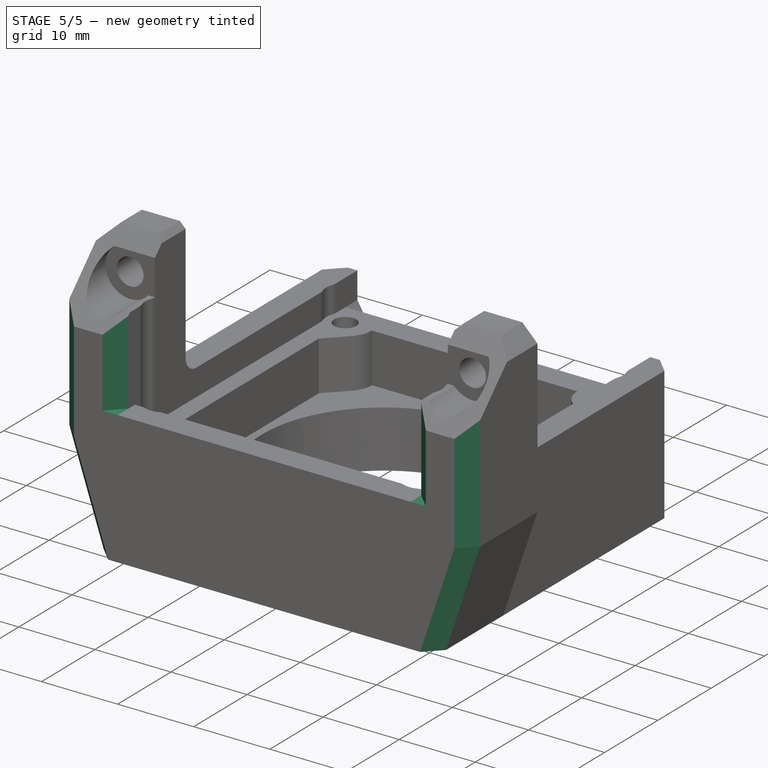
[diagram: stage 5 of 5 — iso view after this stage's code; geometry added in this stage tinted green]
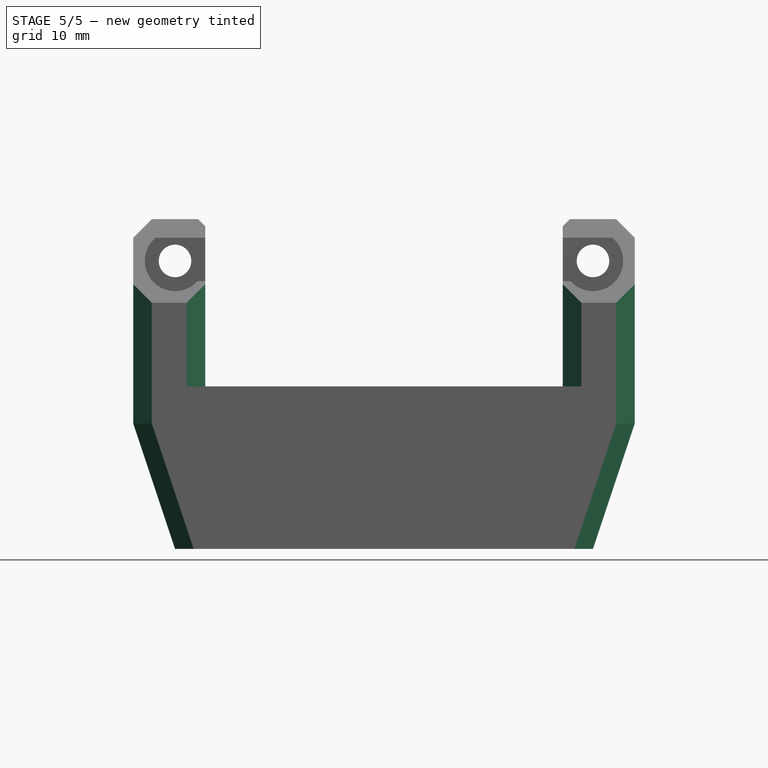
[diagram: stage 5 of 5 — front view after this stage's code; geometry added in this stage tinted green]
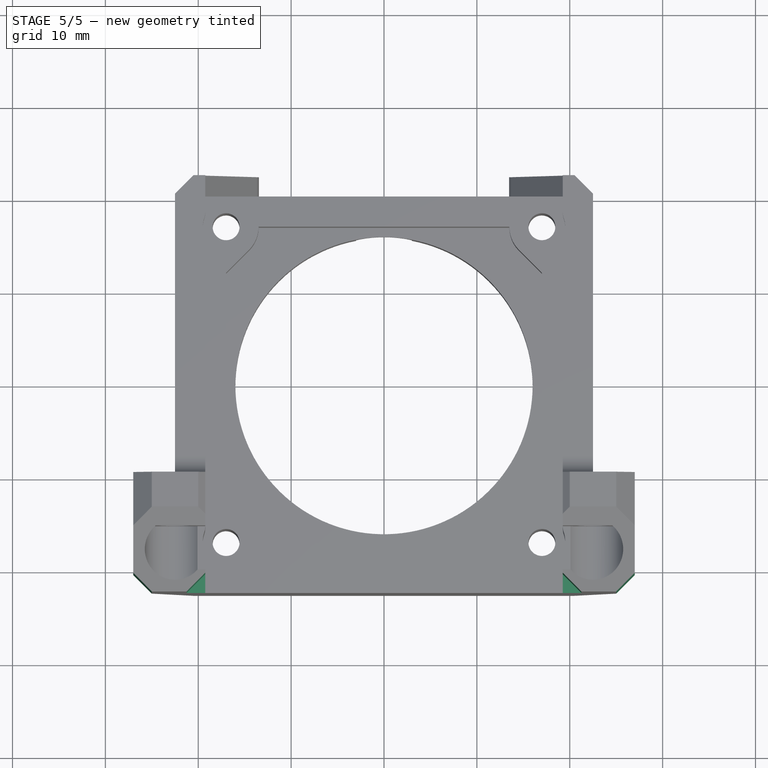
[diagram: stage 5 of 5 — top view after this stage's code; geometry added in this stage tinted green]
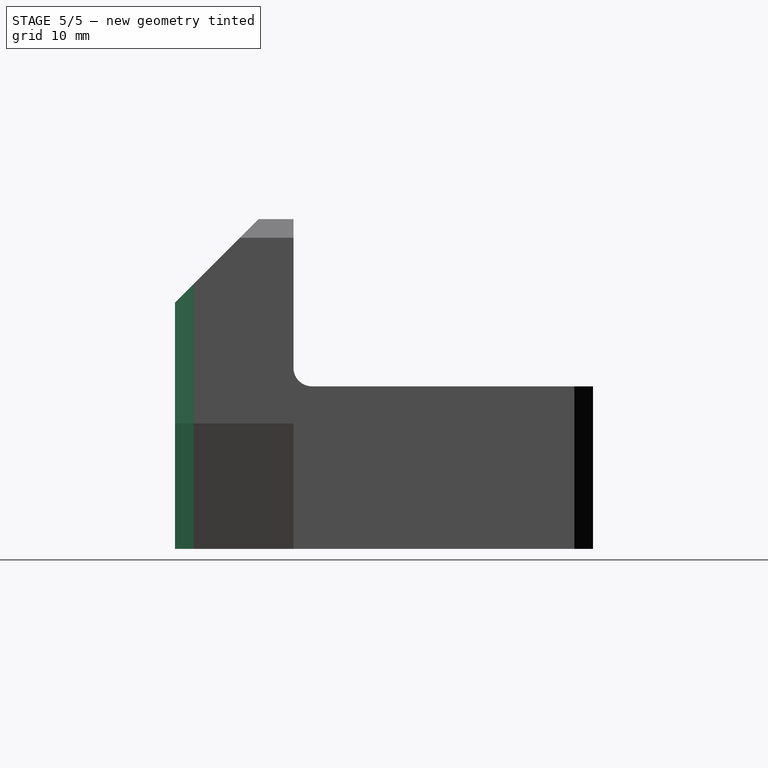
[diagram: stage 5 of 5 — right view after this stage's code; geometry added in this stage tinted green]
FEATURE [PartDesign::Plane] DatumPlane007
  Length = 64.3923
  MapMode = 5
  Placement = pos=(0,0,-17.5) rot=(1,0,0;3.14159rad)
  ResizeMode = 0
  Support = -> [Pad004]
  Width = 60.3923
FEATURE [Sketcher::SketchObject] Sketch016
  ExternalGeometry = -> [Pad004]
  FullyConstrained = true
  MapMode = 5
  Placement = pos=(0,0,-17.5) rot=(1,0,0;3.14159rad)
  Support = -> [DatumPlane007]
  sketch-geometry (5):
    g0: LineSegment StartX=-22.5 StartY=20.5 StartZ=0 EndX=-20.5 EndY=22.5 EndZ=0
    g1: LineSegment StartX=-22.5 StartY=20.5 StartZ=0 EndX=-25.5 EndY=20.5 EndZ=0
    g2: LineSegment StartX=-25.5 StartY=20.5 StartZ=0 EndX=-25.5 EndY=25.5 EndZ=0
    g3: LineSegment StartX=-25.5 StartY=25.5 StartZ=0 EndX=-20.5 EndY=25.5 EndZ=0
    g4: LineSegment StartX=-20.5 StartY=25.5 StartZ=0 EndX=-20.5 EndY=22.5 EndZ=0
  constraints (15):
    c: PointOnObject(g0,g-3)
    c: PointOnObject(g0,g-4)
    c: Coincident(g1,g0)
    c: Coincident(g2,g1)
    c: Coincident(g3,g2)
    c: Coincident(g4,g3)
    c: Coincident(g4,g0)
    c: Vertical(g4)
    c: DistanceY(g0,g-4) = 2
    c: DistanceX(g-4,g0) = 2
    c: Vertical(g2)
    c: Horizontal(g3)
    c: Horizontal(g1)
    c: Equal(g2,g3)
    c: DistanceX(g3,g3) = 5
FEATURE [Sketcher::SketchObject] Sketch017
  ExternalGeometry = -> [Pad004]
  FullyConstrained = true
  MapMode = 5
  Placement = pos=(0,-22.5,0) rot=(1,0,0;1.5708rad)
  Support = -> [DatumPlane006]
  sketch-geometry (3):
    g0: LineSegment StartX=-27 StartY=-4 StartZ=0 EndX=-27 EndY=9 EndZ=0
    g1: LineSegment StartX=-27 StartY=-4 StartZ=0 EndX=-22.5 EndY=-17.5 EndZ=0
    g2: LineSegment StartX=-27 StartY=9 StartZ=0 EndX=-27 EndY=22 EndZ=0
  constraints (7):
    c: Coincident(g0,g-3)
    c: Coincident(g0,g-4)
    c: Coincident(g1,g0)
    c: Coincident(g1,g-3)
    c: Coincident(g2,g0)
    c: Vertical(g2)
    c: Equal(g2,g0)
FEATURE [PartDesign::SubtractivePipe] SubtractivePipe
  AuxilleryCurvelinear = true
  AuxillerySpineTangent = false
  BaseFeature = -> Pad004
  Binormal = (0,0,0)
  Mode = 0
  Profile = -> Sketch016
  Spine = -> Sketch017
  SpineTangent = false
  Transformation = 0
  Transition = 0
FEATURE [PartDesign::Mirrored] Mirrored
  BaseFeature = -> SubtractivePipe
  MirrorPlane = -> Sketch016 [V_Axis]
  Originals = -> [SubtractivePipe]
FEATURE [PartDesign::Chamfer] Chamfer002
  Angle = 45
  Base = -> Mirrored [Edge172]
  BaseFeature = -> Mirrored
  ChamferType = 0
  FlipDirection = false
  Size = 2
  Size2 = 1
  SupportTransform = false
  UseAllEdges = false
FEATURE [PartDesign::Chamfer] Chamfer003
  Angle = 45
  Base = -> Chamfer002 [Edge145]
  BaseFeature = -> Chamfer002
  ChamferType = 0
  FlipDirection = false
  Size = 2
  Size2 = 1
  SupportTransform = false
  UseAllEdges = false
FEATURE [PartDesign::Hole] Hole  label="Widen Mounting Holes"
  BaseFeature = -> Chamfer003
  CustomThreadClearance = 0
  Depth = 25
  DepthType = 0
  Diameter = 2.9
  DrillForDepth = false
  DrillPoint = 1
  DrillPointAngle = 118
  HoleCutCountersinkAngle = 90
  HoleCutCustomValues = false
  HoleCutDepth = 0
  HoleCutDiameter = 6.1
  HoleCutType = 0
  ModelThread = false
  Profile = -> Chamfer003 [Edge237,Edge141,Edge216,Edge223]
  Tapered = false
  TaperedAngle = 90
  ThreadClass = 0
  ThreadDepth = 25
  ThreadDepthType = 0
  ThreadDirection = 0
  ThreadFit = 0
  ThreadSize = 0
  ThreadType = 0
  Threaded = false
  UseCustomThreadClearance = false
FEATURE [PartDesign::Body] Body
  Group = -> [Sketch,Pad,Sketch001,Pocket,Sketch002,Pocket001,Pocket005,Sketch007,DatumPlane,Sketch003,Pad001,DatumPlane001,Sketch005,Pocket003,DatumPlane004,DatumPlane003,Chamfer,Sketch008,Pocket008,Sketch009,Pocket009,Chamfer001,Sketch010,Pocket010,Sketch011,DatumPlane005,Sketch012,Pad002,Pocket012,Sketch013,Pocket013,Sketch014,Pocket014,Fillet,Fillet001,Pad003,DatumPlane006,Sketch015,Pad004,DatumPlane007,+7 more]
  Origin = -> Origin
  Tip = -> Hole
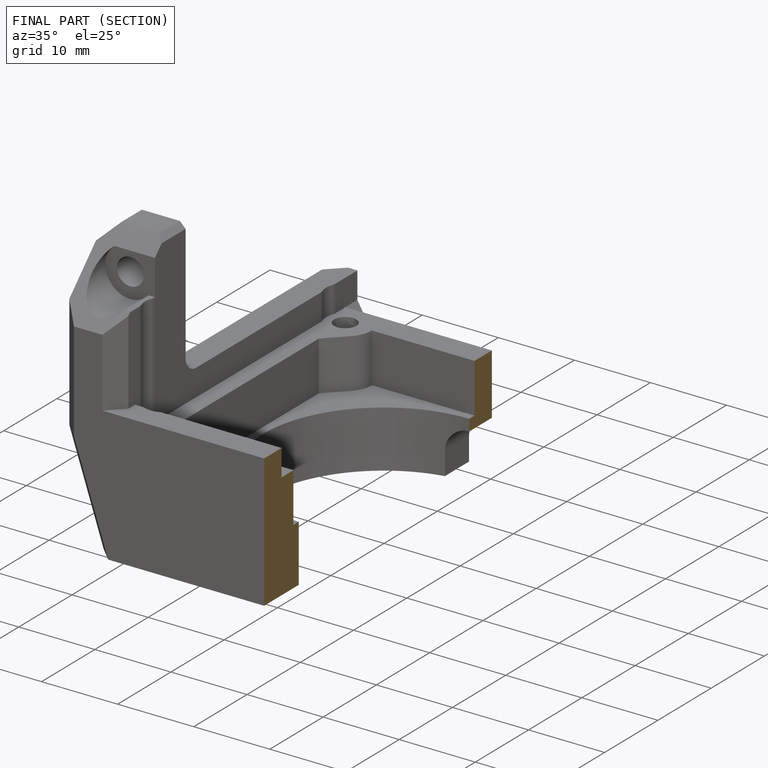
[diagram: finished part — half-section view (interior)]
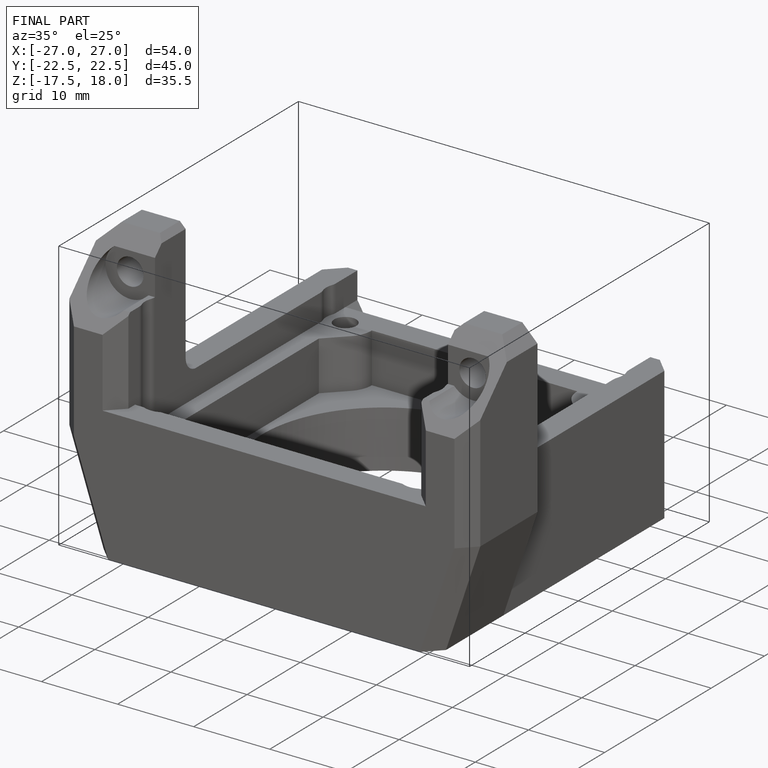
[diagram: finished part — iso view with bounding-box wireframe]
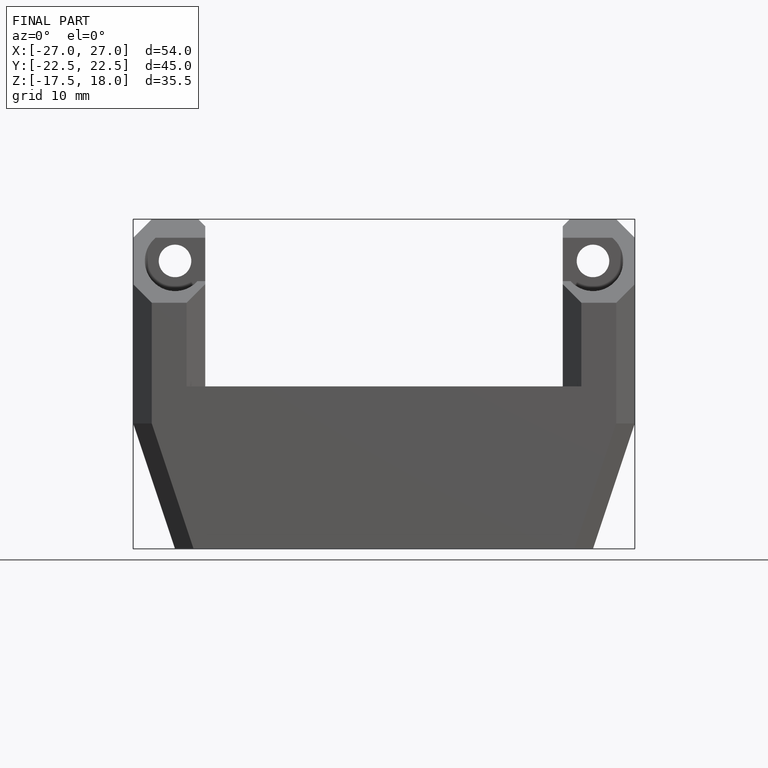
[diagram: finished part — front view with bounding-box wireframe]
